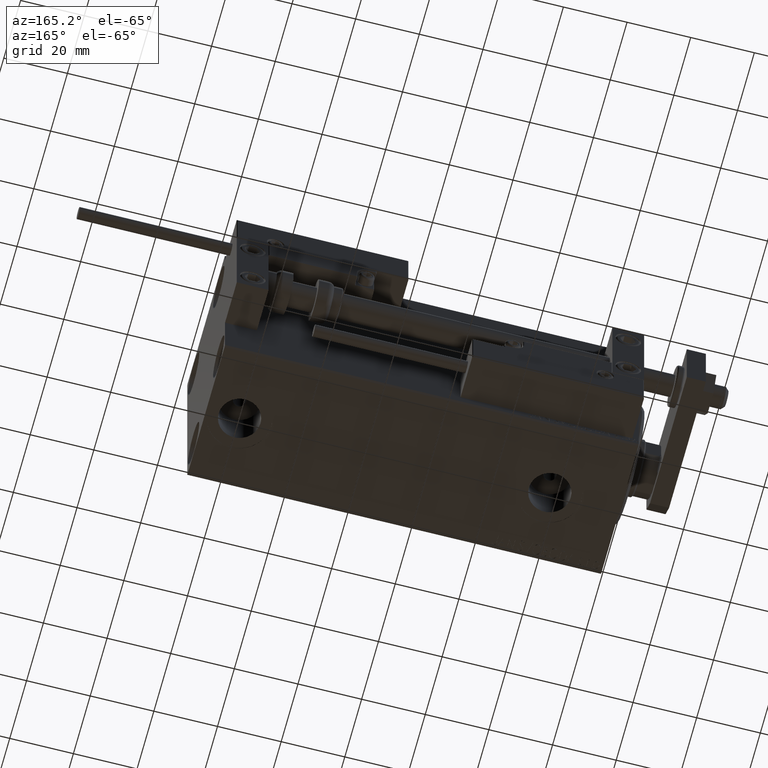
[diagram: clean part render]
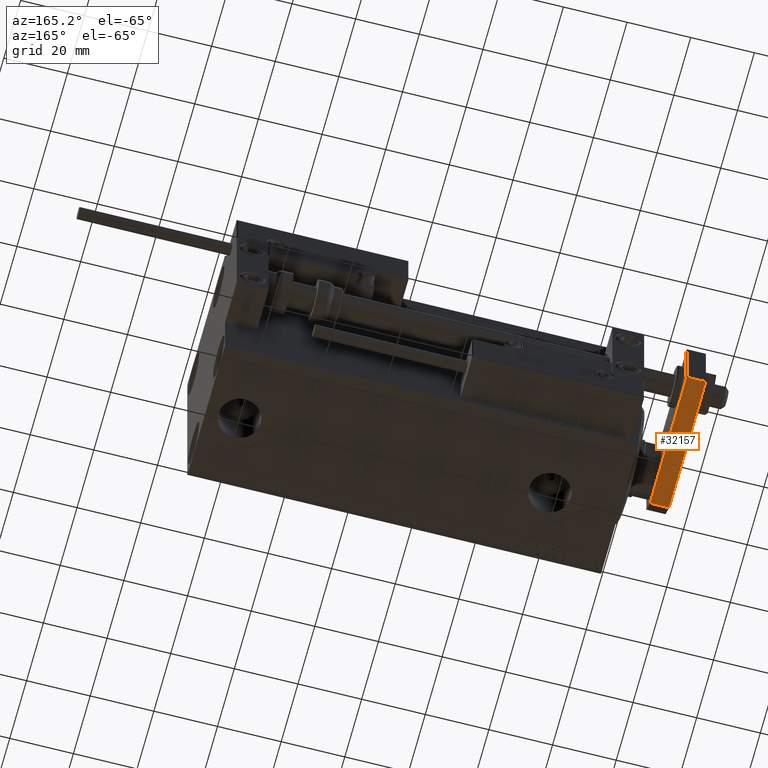
[diagram: same view with one face highlighted and labeled with its STEP entity id]
A machine part, auxiliary view. The second image highlights one B-rep face of the part: STEP entity #32157.
In plain terms, the highlighted planar face has unit normal (0, -0, 1).
Its self-contained STEP definition (entity closure, byte-faithful):
#490 = LINE ( 'NONE', #19835, #7182 ) ;
#1095 = ORIENTED_EDGE ( 'NONE', *, *, #31476, .F. ) ;
#1187 = CARTESIAN_POINT ( 'NONE',  ( -10.00000000000000000, 48.00000000000000000, 6.000000000000000000 ) ) ;
#3378 = LINE ( 'NONE', #11253, #46332 ) ;
#3872 = DIRECTION ( 'NONE',  ( -1.084202172485504434E-16, -1.000000000000000000, 0.000000000000000000 ) ) ;
#6016 = AXIS2_PLACEMENT_3D ( 'NONE', #36874, #10371, #10130 ) ;
#7182 = VECTOR ( 'NONE', #12431, 1000.000000000000000 ) ;
#10126 = EDGE_LOOP ( 'NONE', ( #34982, #40635, #1095, #44418 ) ) ;
#10130 = DIRECTION ( 'NONE',  ( 1.084202172485504434E-16, 1.000000000000000000, 0.000000000000000000 ) ) ;
#10371 = DIRECTION ( 'NONE',  ( 1.000000000000000000, -1.084202172485504434E-16, 0.000000000000000000 ) ) ;
#10435 = VERTEX_POINT ( 'NONE', #28900 ) ;
#10614 = FACE_OUTER_BOUND ( 'NONE', #10126, .T. ) ;
#11253 = CARTESIAN_POINT ( 'NONE',  ( -10.00000000000000000, 48.00000000000000000, 0.000000000000000000 ) ) ;
#12431 = DIRECTION ( 'NONE',  ( 0.000000000000000000, 0.000000000000000000, 1.000000000000000000 ) ) ;
#14447 = PLANE ( 'NONE',  #6016 ) ;
#15340 = EDGE_CURVE ( 'NONE', #49519, #36019, #490, .T. ) ;
#16936 = VERTEX_POINT ( 'NONE', #40764 ) ;
#18732 = EDGE_CURVE ( 'NONE', #16936, #49519, #3378, .T. ) ;
#19835 = CARTESIAN_POINT ( 'NONE',  ( -10.00000000000000533, 4.240000000000021529, 6.000000000000000000 ) ) ;
#20404 = VECTOR ( 'NONE', #22000, 1000.000000000000000 ) ;
#22000 = DIRECTION ( 'NONE',  ( -0.000000000000000000, -0.000000000000000000, -1.000000000000000000 ) ) ;
#28900 = CARTESIAN_POINT ( 'NONE',  ( -10.00000000000000000, 48.00000000000000000, 6.000000000000000000 ) ) ;
#31476 = EDGE_CURVE ( 'NONE', #10435, #36019, #47514, .T. ) ;
#32157 = ADVANCED_FACE ( 'NONE', ( #10614 ), #14447, .F. ) ;
#32245 = DIRECTION ( 'NONE',  ( -1.084202172485504434E-16, -1.000000000000000000, 0.000000000000000000 ) ) ;
#33217 = CARTESIAN_POINT ( 'NONE',  ( -10.00000000000000000, 48.00000000000000000, 6.000000000000000000 ) ) ;
#33336 = CARTESIAN_POINT ( 'NONE',  ( -10.00000000000000533, 4.240000000000021529, 0.000000000000000000 ) ) ;
#33720 = LINE ( 'NONE', #33217, #20404 ) ;
#34982 = ORIENTED_EDGE ( 'NONE', *, *, #18732, .T. ) ;
#36019 = VERTEX_POINT ( 'NONE', #36995 ) ;
#36099 = VECTOR ( 'NONE', #32245, 1000.000000000000000 ) ;
#36874 = CARTESIAN_POINT ( 'NONE',  ( -10.00000000000000000, 48.00000000000000000, 6.000000000000000000 ) ) ;
#36995 = CARTESIAN_POINT ( 'NONE',  ( -10.00000000000000533, 4.240000000000021529, 6.000000000000000000 ) ) ;
#37924 = EDGE_CURVE ( 'NONE', #10435, #16936, #33720, .T. ) ;
#40635 = ORIENTED_EDGE ( 'NONE', *, *, #15340, .T. ) ;
#40764 = CARTESIAN_POINT ( 'NONE',  ( -10.00000000000000000, 48.00000000000000000, 0.000000000000000000 ) ) ;
#44418 = ORIENTED_EDGE ( 'NONE', *, *, #37924, .T. ) ;
#46332 = VECTOR ( 'NONE', #3872, 1000.000000000000000 ) ;
#47514 = LINE ( 'NONE', #1187, #36099 ) ;
#49519 = VERTEX_POINT ( 'NONE', #33336 ) ;